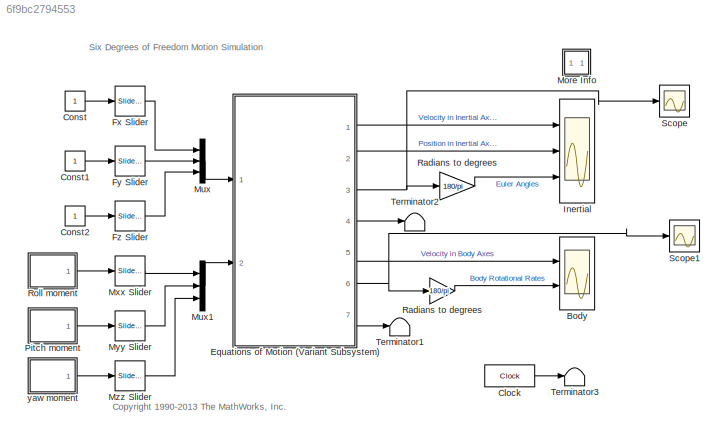
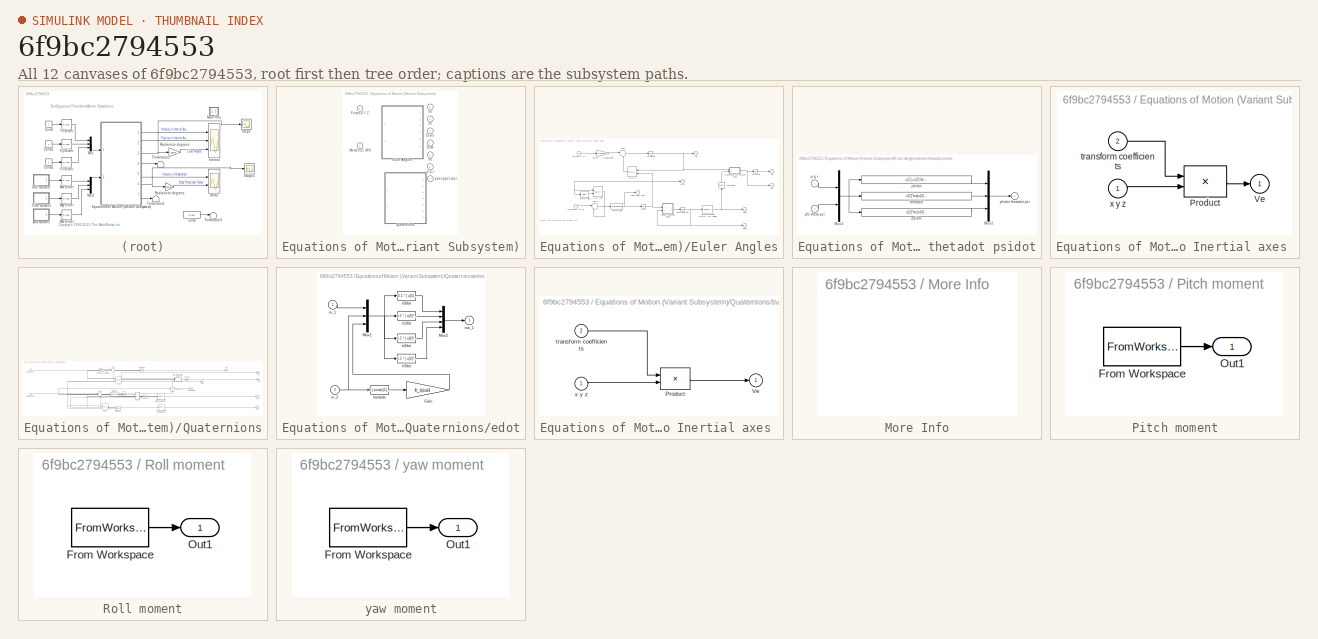
[diagram: thumbnail index - all 12 canvases of the model, root first then tree order]
MODEL slx_6f9bc2794553
KIND model
CONFIG AbsTol = 1e-7
CONFIG FixedStep = auto
CONFIG MaxStep = 0.02
CONFIG MinStep = auto
CONFIG RelTol = 1e-5
CONFIG SampleTimeConstraint = Unconstrained
CONFIG Solver = ode45
CONFIG SolverMode = SingleTasking
CONFIG SolverName = ode45
CONFIG StartTime = 0.0
CONFIG StopTime = 100
BLOCK [Scope] Body
  NumInputPorts = 2
  Ports = [2]
  ScopeSpecificationString = Simulink.scopes.TimeScopeBlockCfg('CurrentConfiguration', extmgr.ConfigurationSet(extmgr.Configuration('Core','General UI',true),extmgr.Configuration('Core','Source UI',true),extmgr.Configuration('Sources','WiredSimulink',true,'DataLoggingSaveFormat','StructureWithTime','DataLoggingLimitDataPoints',true,'DataLoggingDecimation','1','DataLoggingDecimateData',true),extmgr.Configuration('Visuals','Tim...<+2547ch>
BLOCK [Clock] Clock
  Decimation = 100
  DisplayTime = on
BLOCK [Constant] Const
BLOCK [Constant] Const1
BLOCK [Constant] Const2
BLOCK [SubSystem] Equations of Motion (Variant Subsystem)
  OverrideUsingVariant = EqnMotion==1
  Ports = [2, 7]
  RequestExecContextInheritance = off
  Variant = on
BLOCK [Outport] Equations of Motion (Variant Subsystem)/DCM
  IconDisplay = Port number
  Port = 4
BLOCK [Outport] Equations of Motion (Variant Subsystem)/Euler
  IconDisplay = Port number
  Port = 3
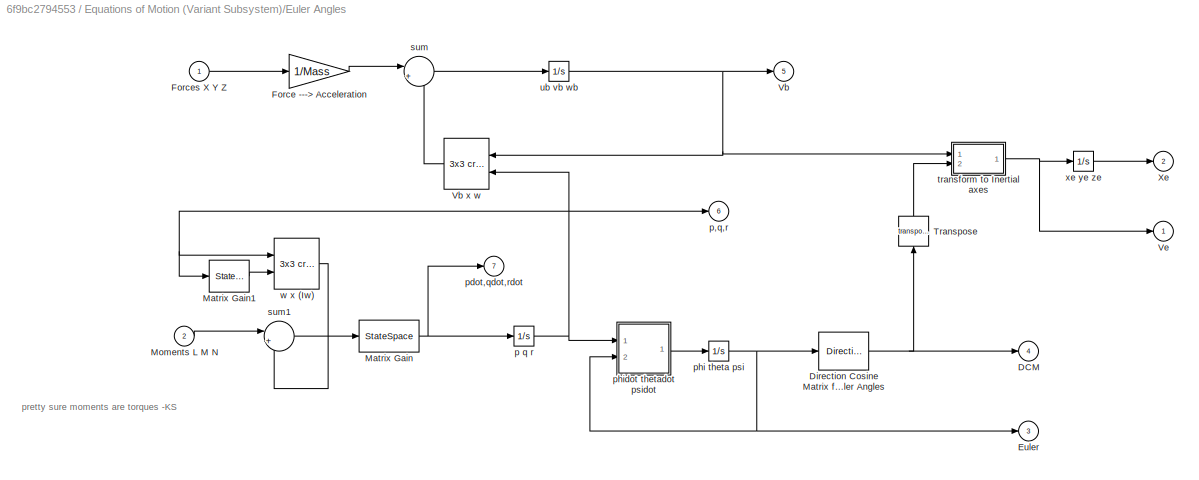
BLOCK [SubSystem] Equations of Motion (Variant Subsystem)/Euler Angles
  Ports = [2, 7]
  RequestExecContextInheritance = off
  Variant = off
  VariantControl = EqnMotion==1
BLOCK [Outport] Equations of Motion (Variant Subsystem)/Euler Angles/DCM
  IconDisplay = Port number
  InitialOutput = 0
  Port = 4
BLOCK [Reference] Equations of Motion (Variant Subsystem)/Euler Angles/Direction Cosine Matrix from Euler Angles  REF=aerospace/Axes  (lib defined in mdl_cf564d925549, slx_1354fe9238a2, +3 more)
Transformations/Direction Cosine Matrix
from Euler Angles
  Ports = [1, 1]
  SourceBlock = aerospace/Axes\nTransformations/Direction Cosine Matrix\nfrom Euler Angles
  SourceType = Direction Cosine Matrix
BLOCK [Outport] Equations of Motion (Variant Subsystem)/Euler Angles/Euler
  IconDisplay = Port number
  InitialOutput = 0
  Port = 3
BLOCK [Gain] Equations of Motion (Variant Subsystem)/Euler Angles/Force ---> Acceleration
  Gain = 1/Mass
BLOCK [Inport] Equations of Motion (Variant Subsystem)/Euler Angles/Forces X Y Z
  IconDisplay = Port number
BLOCK [StateSpace] Equations of Motion (Variant Subsystem)/Euler Angles/Matrix Gain
  A = []
  B = []
  C = []
  D = K
  Ports = [1, 1]
  X0 = 0
BLOCK [StateSpace] Equations of Motion (Variant Subsystem)/Euler Angles/Matrix Gain1
  A = []
  B = []
  C = []
  D = K
  Ports = [1, 1]
  X0 = 0
BLOCK [Inport] Equations of Motion (Variant Subsystem)/Euler Angles/Moments L M N
  IconDisplay = Port number
  Port = 2
BLOCK [Math] Equations of Motion (Variant Subsystem)/Euler Angles/Transpose
  Operator = transpose
  Ports = [1, 1]
BLOCK [Outport] Equations of Motion (Variant Subsystem)/Euler Angles/Vb
  IconDisplay = Port number
  InitialOutput = 0
  Port = 5
BLOCK [Reference] Equations of Motion (Variant Subsystem)/Euler Angles/Vb x w  REF=aerospace/Axes  (lib defined in mdl_cf564d925549, slx_1354fe9238a2, +3 more)
Transformations/3x3 cross product
  Ports = [2, 1]
  SourceBlock = aerospace/Axes\nTransformations/3x3 cross product
  SourceType = Cross Product
BLOCK [Outport] Equations of Motion (Variant Subsystem)/Euler Angles/Ve
  IconDisplay = Port number
  InitialOutput = 0
BLOCK [Outport] Equations of Motion (Variant Subsystem)/Euler Angles/Xe
  IconDisplay = Port number
  InitialOutput = 0
  Port = 2
BLOCK [Integrator] Equations of Motion (Variant Subsystem)/Euler Angles/p q r
  InitialCondition = pm_0
  Ports = [1, 1]
BLOCK [Outport] Equations of Motion (Variant Subsystem)/Euler Angles/p,q,r
  IconDisplay = Port number
  InitialOutput = 0
  Port = 6
BLOCK [Outport] Equations of Motion (Variant Subsystem)/Euler Angles/pdot,qdot,rdot
  IconDisplay = Port number
  InitialOutput = 0
  Port = 7
BLOCK [Integrator] Equations of Motion (Variant Subsystem)/Euler Angles/phi theta psi
  InitialCondition = eul_0
  Ports = [1, 1]
BLOCK [SubSystem] Equations of Motion (Variant Subsystem)/Euler Angles/phidot thetadot psidot
  Ports = [2, 1]
  RequestExecContextInheritance = off
  ShowPortLabels = none
  Variant = off
BLOCK [Mux] Equations of Motion (Variant Subsystem)/Euler Angles/phidot thetadot psidot/Mux1
  DisplayOption = bar
  Inputs = [3 3]
  Ports = [2, 1]
BLOCK [Mux] Equations of Motion (Variant Subsystem)/Euler Angles/phidot thetadot psidot/Mux2
  DisplayOption = bar
  Inputs = 3
  Ports = [3, 1]
BLOCK [Inport] Equations of Motion (Variant Subsystem)/Euler Angles/phidot thetadot psidot/p q r
  IconDisplay = Port number
BLOCK [Inport] Equations of Motion (Variant Subsystem)/Euler Angles/phidot thetadot psidot/phi theta psi
  IconDisplay = Port number
  Port = 2
BLOCK [Fcn] Equations of Motion (Variant Subsystem)/Euler Angles/phidot thetadot psidot/phidot
  Expr = u[1]+u[2]*sin(u[4])*tan(u[5])+u[3]*cos(u[4])*tan(u[5])
BLOCK [Outport] Equations of Motion (Variant Subsystem)/Euler Angles/phidot thetadot psidot/phidot thetadot psi
  IconDisplay = Port number
  InitialOutput = 0
BLOCK [Fcn] Equations of Motion (Variant Subsystem)/Euler Angles/phidot thetadot psidot/psidot
  Expr = u[2]*sin(u[4])/cos(u[5])+u[3]*cos(u[4])/cos(u[5])
BLOCK [Fcn] Equations of Motion (Variant Subsystem)/Euler Angles/phidot thetadot psidot/thetadot
  Expr = u[2]*cos(u[4])-u[3]*sin(u[4])
BLOCK [Sum] Equations of Motion (Variant Subsystem)/Euler Angles/sum
  IconShape = round
  Inputs = |++
  Ports = [2, 1]
BLOCK [Sum] Equations of Motion (Variant Subsystem)/Euler Angles/sum1
  IconShape = round
  Inputs = |+-
  Ports = [2, 1]
BLOCK [SubSystem] Equations of Motion (Variant Subsystem)/Euler Angles/transform to Inertial axes 
  Ports = [2, 1]
  RequestExecContextInheritance = off
  ShowPortLabels = none
  Variant = off
BLOCK [Product] Equations of Motion (Variant Subsystem)/Euler Angles/transform to Inertial axes /Product
  Multiplication = Matrix(*)
  Ports = [2, 1]
BLOCK [Outport] Equations of Motion (Variant Subsystem)/Euler Angles/transform to Inertial axes /Ve
  IconDisplay = Port number
  InitialOutput = 0
BLOCK [Inport] Equations of Motion (Variant Subsystem)/Euler Angles/transform to Inertial axes /transform coefficients
  IconDisplay = Port number
  Port = 2
BLOCK [Inport] Equations of Motion (Variant Subsystem)/Euler Angles/transform to Inertial axes /x y z
  IconDisplay = Port number
BLOCK [Integrator] Equations of Motion (Variant Subsystem)/Euler Angles/ub vb wb
  InitialCondition = Vm_0
  Ports = [1, 1]
BLOCK [Reference] Equations of Motion (Variant Subsystem)/Euler Angles/w x (Iw)  REF=aerospace/Axes  (lib defined in mdl_cf564d925549, slx_1354fe9238a2, +3 more)
Transformations/3x3 cross product
  Ports = [2, 1]
  SourceBlock = aerospace/Axes\nTransformations/3x3 cross product
  SourceType = Cross Product
BLOCK [Integrator] Equations of Motion (Variant Subsystem)/Euler Angles/xe ye ze
  InitialCondition = xme_0
  Ports = [1, 1]
BLOCK [Inport] Equations of Motion (Variant Subsystem)/Forces X Y Z
  IconDisplay = Port number
BLOCK [Inport] Equations of Motion (Variant Subsystem)/Moments L M N
  IconDisplay = Port number
  Port = 2
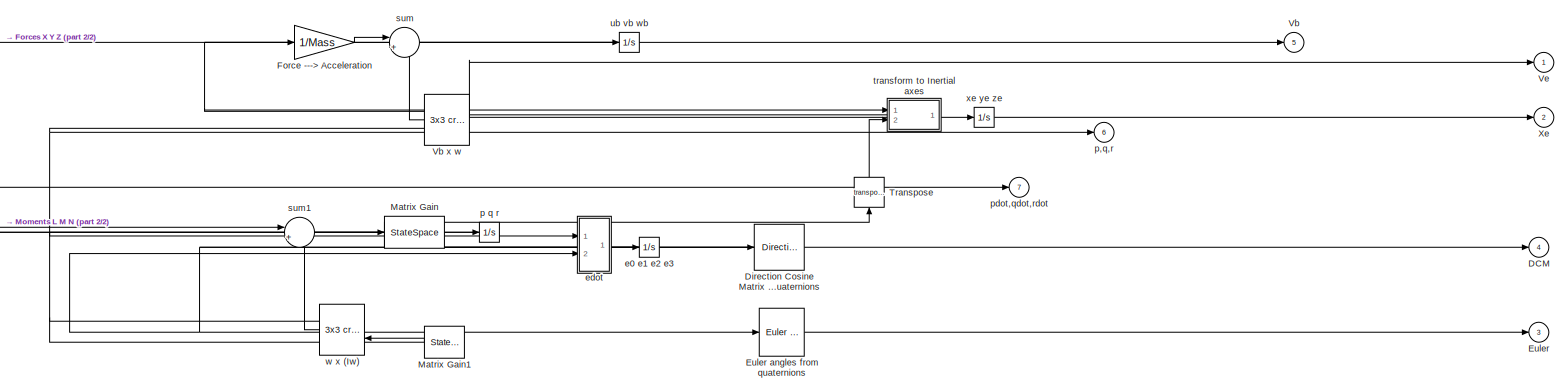
[diagram: Equations of Motion (Variant Subsystem)/Quaternions - part 1/2, most of the canvas]
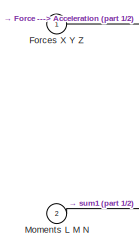
[diagram: Equations of Motion (Variant Subsystem)/Quaternions - part 2/2, middle left region]
BLOCK [SubSystem] Equations of Motion (Variant Subsystem)/Quaternions
  Ports = [2, 7]
  RequestExecContextInheritance = off
  Variant = off
  VariantControl = EqnMotion==2
BLOCK [Outport] Equations of Motion (Variant Subsystem)/Quaternions/DCM
  IconDisplay = Port number
  InitialOutput = 0
  Port = 4
BLOCK [Reference] Equations of Motion (Variant Subsystem)/Quaternions/Direction Cosine Matrix from quaternions  REF=aerospace/Axes  (lib defined in mdl_cf564d925549, slx_1354fe9238a2, +3 more)
Transformations/Direction Cosine Matrix
from quaternions
  Ports = [1, 1]
  SourceBlock = aerospace/Axes\nTransformations/Direction Cosine Matrix\nfrom quaternions
  SourceType = Direction Cosine Matrix
BLOCK [Outport] Equations of Motion (Variant Subsystem)/Quaternions/Euler
  IconDisplay = Port number
  InitialOutput = 0
  Port = 3
BLOCK [Reference] Equations of Motion (Variant Subsystem)/Quaternions/Euler angles from quaternions  REF=aerospace/Axes  (lib defined in mdl_cf564d925549, slx_1354fe9238a2, +3 more)
Transformations/Euler angles
from quaternions
  Ports = [1, 1]
  SourceBlock = aerospace/Axes\nTransformations/Euler angles\nfrom quaternions
  SourceType = Euler angles
BLOCK [Gain] Equations of Motion (Variant Subsystem)/Quaternions/Force ---> Acceleration
  Gain = 1/Mass
BLOCK [Inport] Equations of Motion (Variant Subsystem)/Quaternions/Forces X Y Z
  IconDisplay = Port number
BLOCK [StateSpace] Equations of Motion (Variant Subsystem)/Quaternions/Matrix Gain
  A = []
  B = []
  C = []
  D = K
  Ports = [1, 1]
  X0 = 0
BLOCK [StateSpace] Equations of Motion (Variant Subsystem)/Quaternions/Matrix Gain1
  A = []
  B = []
  C = []
  D = K
  Ports = [1, 1]
  X0 = 0
BLOCK [Inport] Equations of Motion (Variant Subsystem)/Quaternions/Moments L M N
  IconDisplay = Port number
  Port = 2
BLOCK [Math] Equations of Motion (Variant Subsystem)/Quaternions/Transpose
  Operator = transpose
  Ports = [1, 1]
BLOCK [Outport] Equations of Motion (Variant Subsystem)/Quaternions/Vb
  IconDisplay = Port number
  InitialOutput = 0
  Port = 5
BLOCK [Reference] Equations of Motion (Variant Subsystem)/Quaternions/Vb x w  REF=aerospace/Axes  (lib defined in mdl_cf564d925549, slx_1354fe9238a2, +3 more)
Transformations/3x3 cross product
  Ports = [2, 1]
  SourceBlock = aerospace/Axes\nTransformations/3x3 cross product
  SourceType = Cross Product
BLOCK [Outport] Equations of Motion (Variant Subsystem)/Quaternions/Ve
  IconDisplay = Port number
  InitialOutput = 0
BLOCK [Outport] Equations of Motion (Variant Subsystem)/Quaternions/Xe
  IconDisplay = Port number
  InitialOutput = 0
  Port = 2
BLOCK [Integrator] Equations of Motion (Variant Subsystem)/Quaternions/e0 e1 e2 e3
  InitialCondition = [e0_0 e1_0 e2_0 e3_0]
  Ports = [1, 1]
BLOCK [SubSystem] Equations of Motion (Variant Subsystem)/Quaternions/edot
  Ports = [2, 1]
  RequestExecContextInheritance = off
  ShowPortLabels = none
  Variant = off
BLOCK [Gain] Equations of Motion (Variant Subsystem)/Quaternions/edot/Gain
  Gain = k_quat
BLOCK [Mux] Equations of Motion (Variant Subsystem)/Quaternions/edot/Mux1
  DisplayOption = bar
  Inputs = [3 4 1]
  Ports = [3, 1]
BLOCK [Mux] Equations of Motion (Variant Subsystem)/Quaternions/edot/Mux2
  DisplayOption = bar
  Ports = [4, 1]
BLOCK [Fcn] Equations of Motion (Variant Subsystem)/Quaternions/edot/e0dot
  Expr = -0.5 * ( u[5]*u[1]+u[6]*u[2]+u[7]*u[3] ) + u[8]*u[4]
BLOCK [Fcn] Equations of Motion (Variant Subsystem)/Quaternions/edot/e1dot
  Expr = 0.5 * ( u[4]*u[1]+u[6]*u[3]-u[7]*u[2] ) + u[8]*u[5]
BLOCK [Fcn] Equations of Motion (Variant Subsystem)/Quaternions/edot/e2dot
  Expr = 0.5 * ( u[4]*u[2]+u[7]*u[1]-u[5]*u[3] ) + u[8]*u[6]
BLOCK [Fcn] Equations of Motion (Variant Subsystem)/Quaternions/edot/e3dot
  Expr = 0.5 * ( u[4]*u[3]+u[5]*u[2]-u[6]*u[1] ) + u[8]*u[7]
BLOCK [Inport] Equations of Motion (Variant Subsystem)/Quaternions/edot/in_1
  IconDisplay = Port number
BLOCK [Inport] Equations of Motion (Variant Subsystem)/Quaternions/edot/in_2
  IconDisplay = Port number
  Port = 2
BLOCK [Fcn] Equations of Motion (Variant Subsystem)/Quaternions/edot/lambda
  Expr = 1-( pow(u[1],2) + pow(u[2],2) + pow(u[3],2) + pow(u[4],2) )
BLOCK [Outport] Equations of Motion (Variant Subsystem)/Quaternions/edot/out_1
  IconDisplay = Port number
  InitialOutput = 0
BLOCK [Integrator] Equations of Motion (Variant Subsystem)/Quaternions/p q r
  InitialCondition = pm_0
  Ports = [1, 1]
BLOCK [Outport] Equations of Motion (Variant Subsystem)/Quaternions/p,q,r
  IconDisplay = Port number
  InitialOutput = 0
  Port = 6
BLOCK [Outport] Equations of Motion (Variant Subsystem)/Quaternions/pdot,qdot,rdot
  IconDisplay = Port number
  InitialOutput = 0
  Port = 7
BLOCK [Sum] Equations of Motion (Variant Subsystem)/Quaternions/sum
  IconShape = round
  Inputs = |++
  Ports = [2, 1]
BLOCK [Sum] Equations of Motion (Variant Subsystem)/Quaternions/sum1
  IconShape = round
  Inputs = |+-
  Ports = [2, 1]
BLOCK [SubSystem] Equations of Motion (Variant Subsystem)/Quaternions/transform to Inertial axes 
  Ports = [2, 1]
  RequestExecContextInheritance = off
  ShowPortLabels = none
  Variant = off
BLOCK [Product] Equations of Motion (Variant Subsystem)/Quaternions/transform to Inertial axes /Product
  Multiplication = Matrix(*)
  Ports = [2, 1]
BLOCK [Outport] Equations of Motion (Variant Subsystem)/Quaternions/transform to Inertial axes /Ve
  IconDisplay = Port number
  InitialOutput = 0
BLOCK [Inport] Equations of Motion (Variant Subsystem)/Quaternions/transform to Inertial axes /transform coefficients
  IconDisplay = Port number
  Port = 2
BLOCK [Inport] Equations of Motion (Variant Subsystem)/Quaternions/transform to Inertial axes /x y z
  IconDisplay = Port number
BLOCK [Integrator] Equations of Motion (Variant Subsystem)/Quaternions/ub vb wb
  InitialCondition = Vm_0
  Ports = [1, 1]
BLOCK [Reference] Equations of Motion (Variant Subsystem)/Quaternions/w x (Iw)  REF=aerospace/Axes  (lib defined in mdl_cf564d925549, slx_1354fe9238a2, +3 more)
Transformations/3x3 cross product
  Ports = [2, 1]
  SourceBlock = aerospace/Axes\nTransformations/3x3 cross product
  SourceType = Cross Product
BLOCK [Integrator] Equations of Motion (Variant Subsystem)/Quaternions/xe ye ze
  InitialCondition = xme_0
  Ports = [1, 1]
BLOCK [Outport] Equations of Motion (Variant Subsystem)/Vb
  IconDisplay = Port number
  Port = 5
BLOCK [Outport] Equations of Motion (Variant Subsystem)/Ve
  IconDisplay = Port number
BLOCK [Outport] Equations of Motion (Variant Subsystem)/Xe
  IconDisplay = Port number
  Port = 2
BLOCK [Outport] Equations of Motion (Variant Subsystem)/p,q,r
  IconDisplay = Port number
  Port = 6
BLOCK [Outport] Equations of Motion (Variant Subsystem)/pdot,qdot,rdot
  IconDisplay = Port number
  Port = 7
BLOCK [Reference] Fx Slider  REF=simulink/Math
Operations/Slider
Gain
  Ports = [1, 1]
  SourceBlock = simulink/Math\nOperations/Slider\nGain
  SourceType = Slider Gain
BLOCK [Reference] Fy Slider  REF=simulink/Math
Operations/Slider
Gain
  Ports = [1, 1]
  SourceBlock = simulink/Math\nOperations/Slider\nGain
  SourceType = Slider Gain
BLOCK [Reference] Fz Slider  REF=simulink/Math
Operations/Slider
Gain
  Ports = [1, 1]
  SourceBlock = simulink/Math\nOperations/Slider\nGain
  SourceType = Slider Gain
BLOCK [Scope] Inertial
  NumInputPorts = 3
  Ports = [3]
  ScopeSpecificationString = Simulink.scopes.TimeScopeBlockCfg('CurrentConfiguration', extmgr.ConfigurationSet(extmgr.Configuration('Core','General UI',true),extmgr.Configuration('Core','Source UI',true),extmgr.Configuration('Sources','WiredSimulink',true,'DataLogging',true,'DataLoggingVariableName','InertialData','DataLoggingSaveFormat','StructureWithTime','DataLoggingDecimation','1','DataLoggingDecimateData',true),extmgr.Co...<+3317ch>
BLOCK [SubSystem] More Info
  OpenFcn = showdemo(bdroot(gcb))
  Ports = []
  RequestExecContextInheritance = off
  Variant = off
BLOCK [Mux] Mux
  DisplayOption = bar
  Inputs = 3
  Ports = [3, 1]
BLOCK [Mux] Mux1
  DisplayOption = bar
  Inputs = 3
  Ports = [3, 1]
BLOCK [Reference] Mxx Slider  REF=simulink/Math
Operations/Slider
Gain
  Ports = [1, 1]
  SourceBlock = simulink/Math\nOperations/Slider\nGain
  SourceType = Slider Gain
BLOCK [Reference] Myy Slider  REF=simulink/Math
Operations/Slider
Gain
  Ports = [1, 1]
  SourceBlock = simulink/Math\nOperations/Slider\nGain
  SourceType = Slider Gain
BLOCK [Reference] Mzz Slider  REF=simulink/Math
Operations/Slider
Gain
  Ports = [1, 1]
  SourceBlock = simulink/Math\nOperations/Slider\nGain
  SourceType = Slider Gain
BLOCK [SubSystem] Pitch moment
  Ports = [0, 1]
  RequestExecContextInheritance = off
  Variant = off
BLOCK [FromWorkspace] Pitch moment/From Workspace
  SampleTime = 0
  VariableName = [t',u']
BLOCK [Outport] Pitch moment/Out1
  IconDisplay = Port number
  InitialOutput = 0
BLOCK [Gain] Radians to degrees
  Gain = 180/pi
BLOCK [Gain] Radians to degrees 
  Gain = 180/pi
BLOCK [SubSystem] Roll moment
  Ports = [0, 1]
  RequestExecContextInheritance = off
  Variant = off
BLOCK [FromWorkspace] Roll moment/From Workspace
  SampleTime = 0
  VariableName = [t',u']
BLOCK [Outport] Roll moment/Out1
  IconDisplay = Port number
  InitialOutput = 0
BLOCK [Scope] Scope
  Ports = [1]
  ScopeSpecificationString = Simulink.scopes.TimeScopeBlockCfg('CurrentConfiguration', extmgr.ConfigurationSet(extmgr.Configuration('Core','General UI',true),extmgr.Configuration('Core','Source UI',true),extmgr.Configuration('Sources','WiredSimulink',true,'DataLoggingVariableName','ScopeData1'),extmgr.Configuration('Visuals','Time Domain',true,'SerializedDisplays',{struct('MinYLimReal','-65.79015','MaxYLimReal','17.77804','YL...<+1500ch>
BLOCK [Scope] Scope1
  Ports = [1]
  ScopeSpecificationString = Simulink.scopes.TimeScopeBlockCfg('CurrentConfiguration', extmgr.ConfigurationSet(extmgr.Configuration('Core','General UI',true),extmgr.Configuration('Core','Source UI',true),extmgr.Configuration('Sources','WiredSimulink',true,'DataLoggingVariableName','ScopeData2'),extmgr.Configuration('Visuals','Time Domain',true,'SerializedDisplays',{struct('MinYLimReal','-1.83637','MaxYLimReal','0.7596','YLabe...<+1548ch>
BLOCK [Terminator] Terminator1
BLOCK [Terminator] Terminator2
BLOCK [Terminator] Terminator3
BLOCK [SubSystem] yaw moment
  Ports = [0, 1]
  RequestExecContextInheritance = off
  Variant = off
BLOCK [FromWorkspace] yaw moment/From Workspace
  SampleTime = 0
  VariableName = [t',u']
BLOCK [Outport] yaw moment/Out1
  IconDisplay = Port number
  InitialOutput = 0
ANNOTATION (root): <copyright redacted>
ANNOTATION (root): Six Degrees of Freedom Motion Simulation
ANNOTATION Equations of Motion (Variant Subsystem)/Euler Angles: pretty sure moments are torques -KS
LINE Clock:1 -> Terminator3:1
LINE Const1:1 -> Fy Slider:1
LINE Const2:1 -> Fz Slider:1
LINE Const:1 -> Fx Slider:1
NET Equations of Motion (Variant Subsystem)/Euler Angles/Direction Cosine Matrix from Euler Angles:1 -> Equations of Motion (Variant Subsystem)/Euler Angles/DCM:1, Equations of Motion (Variant Subsystem)/Euler Angles/Transpose:1
LINE Equations of Motion (Variant Subsystem)/Euler Angles/Force ---> Acceleration:1 -> Equations of Motion (Variant Subsystem)/Euler Angles/sum:1
LINE Equations of Motion (Variant Subsystem)/Euler Angles/Forces X Y Z:1 -> Equations of Motion (Variant Subsystem)/Euler Angles/Force ---> Acceleration:1
LINE Equations of Motion (Variant Subsystem)/Euler Angles/Matrix Gain1:1 -> Equations of Motion (Variant Subsystem)/Euler Angles/w x (Iw):2
NET Equations of Motion (Variant Subsystem)/Euler Angles/Matrix Gain:1 -> Equations of Motion (Variant Subsystem)/Euler Angles/p q r:1, Equations of Motion (Variant Subsystem)/Euler Angles/pdot,qdot,rdot:1
LINE Equations of Motion (Variant Subsystem)/Euler Angles/Moments L M N:1 -> Equations of Motion (Variant Subsystem)/Euler Angles/sum1:1
LINE Equations of Motion (Variant Subsystem)/Euler Angles/Transpose:1 -> Equations of Motion (Variant Subsystem)/Euler Angles/transform to Inertial axes :2
LINE Equations of Motion (Variant Subsystem)/Euler Angles/Vb x w:1 -> Equations of Motion (Variant Subsystem)/Euler Angles/sum:2
NET Equations of Motion (Variant Subsystem)/Euler Angles/p q r:1 -> Equations of Motion (Variant Subsystem)/Euler Angles/Matrix Gain1:1, Equations of Motion (Variant Subsystem)/Euler Angles/Vb x w:2, Equations of Motion (Variant Subsystem)/Euler Angles/p,q,r:1, Equations of Motion (Variant Subsystem)/Euler Angles/phidot thetadot psidot:1, Equations of Motion (Variant Subsystem)/Euler Angles/w x (Iw):1
NET Equations of Motion (Variant Subsystem)/Euler Angles/phi theta psi:1 -> Equations of Motion (Variant Subsystem)/Euler Angles/Direction Cosine Matrix from Euler Angles:1, Equations of Motion (Variant Subsystem)/Euler Angles/Euler:1, Equations of Motion (Variant Subsystem)/Euler Angles/phidot thetadot psidot:2
NET Equations of Motion (Variant Subsystem)/Euler Angles/phidot thetadot psidot/Mux1:1 -> Equations of Motion (Variant Subsystem)/Euler Angles/phidot thetadot psidot/phidot:1, Equations of Motion (Variant Subsystem)/Euler Angles/phidot thetadot psidot/psidot:1, Equations of Motion (Variant Subsystem)/Euler Angles/phidot thetadot psidot/thetadot:1
LINE Equations of Motion (Variant Subsystem)/Euler Angles/phidot thetadot psidot/Mux2:1 -> Equations of Motion (Variant Subsystem)/Euler Angles/phidot thetadot psidot/phidot thetadot psi:1
LINE Equations of Motion (Variant Subsystem)/Euler Angles/phidot thetadot psidot/p q r:1 -> Equations of Motion (Variant Subsystem)/Euler Angles/phidot thetadot psidot/Mux1:1
LINE Equations of Motion (Variant Subsystem)/Euler Angles/phidot thetadot psidot/phi theta psi:1 -> Equations of Motion (Variant Subsystem)/Euler Angles/phidot thetadot psidot/Mux1:2
LINE Equations of Motion (Variant Subsystem)/Euler Angles/phidot thetadot psidot/phidot:1 -> Equations of Motion (Variant Subsystem)/Euler Angles/phidot thetadot psidot/Mux2:1
LINE Equations of Motion (Variant Subsystem)/Euler Angles/phidot thetadot psidot/psidot:1 -> Equations of Motion (Variant Subsystem)/Euler Angles/phidot thetadot psidot/Mux2:3
LINE Equations of Motion (Variant Subsystem)/Euler Angles/phidot thetadot psidot/thetadot:1 -> Equations of Motion (Variant Subsystem)/Euler Angles/phidot thetadot psidot/Mux2:2
LINE Equations of Motion (Variant Subsystem)/Euler Angles/phidot thetadot psidot:1 -> Equations of Motion (Variant Subsystem)/Euler Angles/phi theta psi:1
LINE Equations of Motion (Variant Subsystem)/Euler Angles/sum1:1 -> Equations of Motion (Variant Subsystem)/Euler Angles/Matrix Gain:1
LINE Equations of Motion (Variant Subsystem)/Euler Angles/sum:1 -> Equations of Motion (Variant Subsystem)/Euler Angles/ub vb wb:1
LINE Equations of Motion (Variant Subsystem)/Euler Angles/transform to Inertial axes /Product:1 -> Equations of Motion (Variant Subsystem)/Euler Angles/transform to Inertial axes /Ve:1
LINE Equations of Motion (Variant Subsystem)/Euler Angles/transform to Inertial axes /transform coefficients:1 -> Equations of Motion (Variant Subsystem)/Euler Angles/transform to Inertial axes /Product:1
LINE Equations of Motion (Variant Subsystem)/Euler Angles/transform to Inertial axes /x y z:1 -> Equations of Motion (Variant Subsystem)/Euler Angles/transform to Inertial axes /Product:2
NET Equations of Motion (Variant Subsystem)/Euler Angles/transform to Inertial axes :1 -> Equations of Motion (Variant Subsystem)/Euler Angles/Ve:1, Equations of Motion (Variant Subsystem)/Euler Angles/xe ye ze:1
NET Equations of Motion (Variant Subsystem)/Euler Angles/ub vb wb:1 -> Equations of Motion (Variant Subsystem)/Euler Angles/Vb x w:1, Equations of Motion (Variant Subsystem)/Euler Angles/Vb:1, Equations of Motion (Variant Subsystem)/Euler Angles/transform to Inertial axes :1
LINE Equations of Motion (Variant Subsystem)/Euler Angles/w x (Iw):1 -> Equations of Motion (Variant Subsystem)/Euler Angles/sum1:2
LINE Equations of Motion (Variant Subsystem)/Euler Angles/xe ye ze:1 -> Equations of Motion (Variant Subsystem)/Euler Angles/Xe:1
NET Equations of Motion (Variant Subsystem)/Quaternions/Direction Cosine Matrix from quaternions:1 -> Equations of Motion (Variant Subsystem)/Quaternions/DCM:1, Equations of Motion (Variant Subsystem)/Quaternions/Transpose:1
LINE Equations of Motion (Variant Subsystem)/Quaternions/Euler angles from quaternions:1 -> Equations of Motion (Variant Subsystem)/Quaternions/Euler:1
LINE Equations of Motion (Variant Subsystem)/Quaternions/Force ---> Acceleration:1 -> Equations of Motion (Variant Subsystem)/Quaternions/sum:1
LINE Equations of Motion (Variant Subsystem)/Quaternions/Forces X Y Z:1 -> Equations of Motion (Variant Subsystem)/Quaternions/Force ---> Acceleration:1
LINE Equations of Motion (Variant Subsystem)/Quaternions/Matrix Gain1:1 -> Equations of Motion (Variant Subsystem)/Quaternions/w x (Iw):2
NET Equations of Motion (Variant Subsystem)/Quaternions/Matrix Gain:1 -> Equations of Motion (Variant Subsystem)/Quaternions/p q r:1, Equations of Motion (Variant Subsystem)/Quaternions/pdot,qdot,rdot:1
LINE Equations of Motion (Variant Subsystem)/Quaternions/Moments L M N:1 -> Equations of Motion (Variant Subsystem)/Quaternions/sum1:1
LINE Equations of Motion (Variant Subsystem)/Quaternions/Transpose:1 -> Equations of Motion (Variant Subsystem)/Quaternions/transform to Inertial axes :2
LINE Equations of Motion (Variant Subsystem)/Quaternions/Vb x w:1 -> Equations of Motion (Variant Subsystem)/Quaternions/sum:2
NET Equations of Motion (Variant Subsystem)/Quaternions/e0 e1 e2 e3:1 -> Equations of Motion (Variant Subsystem)/Quaternions/Direction Cosine Matrix from quaternions:1, Equations of Motion (Variant Subsystem)/Quaternions/Euler angles from quaternions:1, Equations of Motion (Variant Subsystem)/Quaternions/edot:2
LINE Equations of Motion (Variant Subsystem)/Quaternions/edot/Gain:1 -> Equations of Motion (Variant Subsystem)/Quaternions/edot/Mux1:3
NET Equations of Motion (Variant Subsystem)/Quaternions/edot/Mux1:1 -> Equations of Motion (Variant Subsystem)/Quaternions/edot/e0dot:1, Equations of Motion (Variant Subsystem)/Quaternions/edot/e1dot:1, Equations of Motion (Variant Subsystem)/Quaternions/edot/e2dot:1, Equations of Motion (Variant Subsystem)/Quaternions/edot/e3dot:1
LINE Equations of Motion (Variant Subsystem)/Quaternions/edot/Mux2:1 -> Equations of Motion (Variant Subsystem)/Quaternions/edot/out_1:1
LINE Equations of Motion (Variant Subsystem)/Quaternions/edot/e0dot:1 -> Equations of Motion (Variant Subsystem)/Quaternions/edot/Mux2:1
LINE Equations of Motion (Variant Subsystem)/Quaternions/edot/e1dot:1 -> Equations of Motion (Variant Subsystem)/Quaternions/edot/Mux2:2
LINE Equations of Motion (Variant Subsystem)/Quaternions/edot/e2dot:1 -> Equations of Motion (Variant Subsystem)/Quaternions/edot/Mux2:3
LINE Equations of Motion (Variant Subsystem)/Quaternions/edot/e3dot:1 -> Equations of Motion (Variant Subsystem)/Quaternions/edot/Mux2:4
LINE Equations of Motion (Variant Subsystem)/Quaternions/edot/in_1:1 -> Equations of Motion (Variant Subsystem)/Quaternions/edot/Mux1:1
NET Equations of Motion (Variant Subsystem)/Quaternions/edot/in_2:1 -> Equations of Motion (Variant Subsystem)/Quaternions/edot/Mux1:2, Equations of Motion (Variant Subsystem)/Quaternions/edot/lambda:1
LINE Equations of Motion (Variant Subsystem)/Quaternions/edot/lambda:1 -> Equations of Motion (Variant Subsystem)/Quaternions/edot/Gain:1
LINE Equations of Motion (Variant Subsystem)/Quaternions/edot:1 -> Equations of Motion (Variant Subsystem)/Quaternions/e0 e1 e2 e3:1
NET Equations of Motion (Variant Subsystem)/Quaternions/p q r:1 -> Equations of Motion (Variant Subsystem)/Quaternions/Matrix Gain1:1, Equations of Motion (Variant Subsystem)/Quaternions/Vb x w:2, Equations of Motion (Variant Subsystem)/Quaternions/edot:1, Equations of Motion (Variant Subsystem)/Quaternions/p,q,r:1, Equations of Motion (Variant Subsystem)/Quaternions/w x (Iw):1
LINE Equations of Motion (Variant Subsystem)/Quaternions/sum1:1 -> Equations of Motion (Variant Subsystem)/Quaternions/Matrix Gain:1
LINE Equations of Motion (Variant Subsystem)/Quaternions/sum:1 -> Equations of Motion (Variant Subsystem)/Quaternions/ub vb wb:1
LINE Equations of Motion (Variant Subsystem)/Quaternions/transform to Inertial axes /Product:1 -> Equations of Motion (Variant Subsystem)/Quaternions/transform to Inertial axes /Ve:1
LINE Equations of Motion (Variant Subsystem)/Quaternions/transform to Inertial axes /transform coefficients:1 -> Equations of Motion (Variant Subsystem)/Quaternions/transform to Inertial axes /Product:1
LINE Equations of Motion (Variant Subsystem)/Quaternions/transform to Inertial axes /x y z:1 -> Equations of Motion (Variant Subsystem)/Quaternions/transform to Inertial axes /Product:2
NET Equations of Motion (Variant Subsystem)/Quaternions/transform to Inertial axes :1 -> Equations of Motion (Variant Subsystem)/Quaternions/Ve:1, Equations of Motion (Variant Subsystem)/Quaternions/xe ye ze:1
NET Equations of Motion (Variant Subsystem)/Quaternions/ub vb wb:1 -> Equations of Motion (Variant Subsystem)/Quaternions/Vb x w:1, Equations of Motion (Variant Subsystem)/Quaternions/Vb:1, Equations of Motion (Variant Subsystem)/Quaternions/transform to Inertial axes :1
LINE Equations of Motion (Variant Subsystem)/Quaternions/w x (Iw):1 -> Equations of Motion (Variant Subsystem)/Quaternions/sum1:2
LINE Equations of Motion (Variant Subsystem)/Quaternions/xe ye ze:1 -> Equations of Motion (Variant Subsystem)/Quaternions/Xe:1
LINE Equations of Motion (Variant Subsystem):1 -> Inertial:1
LINE Equations of Motion (Variant Subsystem):2 -> Inertial:2
NET Equations of Motion (Variant Subsystem):3 -> Radians to degrees:1, Scope:1
LINE Equations of Motion (Variant Subsystem):4 -> Terminator2:1
LINE Equations of Motion (Variant Subsystem):5 -> Body:1
NET Equations of Motion (Variant Subsystem):6 -> Radians to degrees :1, Scope1:1
LINE Equations of Motion (Variant Subsystem):7 -> Terminator1:1
LINE Fx Slider:1 -> Mux:1
LINE Fy Slider:1 -> Mux:2
LINE Fz Slider:1 -> Mux:3
LINE Mux1:1 -> Equations of Motion (Variant Subsystem):2
LINE Mux:1 -> Equations of Motion (Variant Subsystem):1
LINE Mxx Slider:1 -> Mux1:1
LINE Myy Slider:1 -> Mux1:2
LINE Mzz Slider:1 -> Mux1:3
LINE Pitch moment/From Workspace:1 -> Pitch moment/Out1:1
LINE Pitch moment:1 -> Myy Slider:1
LINE Radians to degrees :1 -> Body:2
LINE Radians to degrees:1 -> Inertial:3
LINE Roll moment/From Workspace:1 -> Roll moment/Out1:1
LINE Roll moment:1 -> Mxx Slider:1
LINE yaw moment/From Workspace:1 -> yaw moment/Out1:1
LINE yaw moment:1 -> Mzz Slider:1
note: NET lines group one-source signal fan-out (src -> all destinations, sorted); 1:1 wires keep LINE
